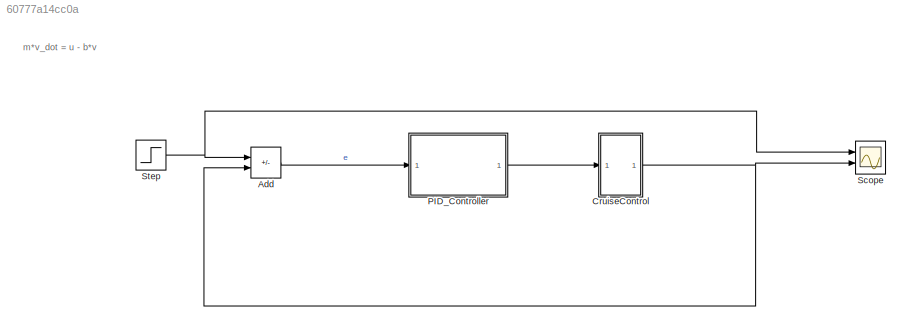
MODEL slx_60777a14cc0a
KIND model
CONFIG AbsTol = auto
CONFIG EnableMultiTasking = off
CONFIG FixedStep = auto
CONFIG MaxStep = auto
CONFIG MinStep = auto
CONFIG PostLoadFcn = m = 1000;\nb = 50;\nu = 500;
CONFIG RelTol = 1e-3
CONFIG SampleTimeConstraint = Unconstrained
CONFIG Solver = VariableStepAuto
CONFIG SolverName = VariableStepAuto
CONFIG StartTime = 0.0
CONFIG StopTime = 120
BLOCK [Sum] Add
  IconShape = rectangular
  Inputs = +-
  Ports = [2, 1]
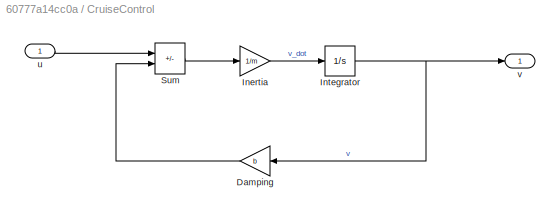
BLOCK [SubSystem] CruiseControl
  Ports = [1, 1]
  RequestExecContextInheritance = off
BLOCK [Gain] CruiseControl/Damping
  Gain = b
  NameLocation = top
BLOCK [Gain] CruiseControl/Inertia
  Gain = 1/m
BLOCK [Integrator] CruiseControl/Integrator 
  Ports = [1, 1]
BLOCK [Sum] CruiseControl/Sum 
  IconShape = rectangular
  Inputs = +-
  Ports = [2, 1]
BLOCK [Inport] CruiseControl/u
BLOCK [Outport] CruiseControl/v
BLOCK [ModelReference] PID_Controller
  ModelNameDialog = PID_Controller
  ModelReferenceVersion = 1.11
  Ports = [1, 1]
BLOCK [Scope] Scope 
  Floating = off
  NumInputPorts = 2
  Ports = [2]
  ScopeSpecificationString = Simulink.scopes.TimeScopeBlockCfg('CurrentConfiguration', extmgr.ConfigurationSet(extmgr.Configuration('Core','General UI',true),extmgr.Configuration('Core','Source UI',true),extmgr.Configuration('Sources','WiredSimulink',true),extmgr.Configuration('Visuals','Time Domain',true,'SerializedDisplays',{struct('MinYLimReal','-62.5','MaxYLimReal','562.5','YLabelReal','','MinYLimMag','0.00000','MaxYLimMa...<+2088ch>
BLOCK [Step] Step 
  After = u
  SampleTime = 0
  Time = 0
ANNOTATION (root): m*v_dot = u - b*v
LINE Add:1 -> PID_Controller:1
LINE CruiseControl/Damping:1 -> CruiseControl/Sum :2
LINE CruiseControl/Inertia:1 -> CruiseControl/Integrator :1
NET CruiseControl/Integrator :1 -> CruiseControl/Damping:1, CruiseControl/v:1
LINE CruiseControl/Sum :1 -> CruiseControl/Inertia:1
LINE CruiseControl/u:1 -> CruiseControl/Sum :1
NET CruiseControl:1 -> Add:2, Scope :2
LINE PID_Controller:1 -> CruiseControl:1
NET Step :1 -> Add:1, Scope :1
note: NET lines group one-source signal fan-out (src -> all destinations, sorted); 1:1 wires keep LINE
